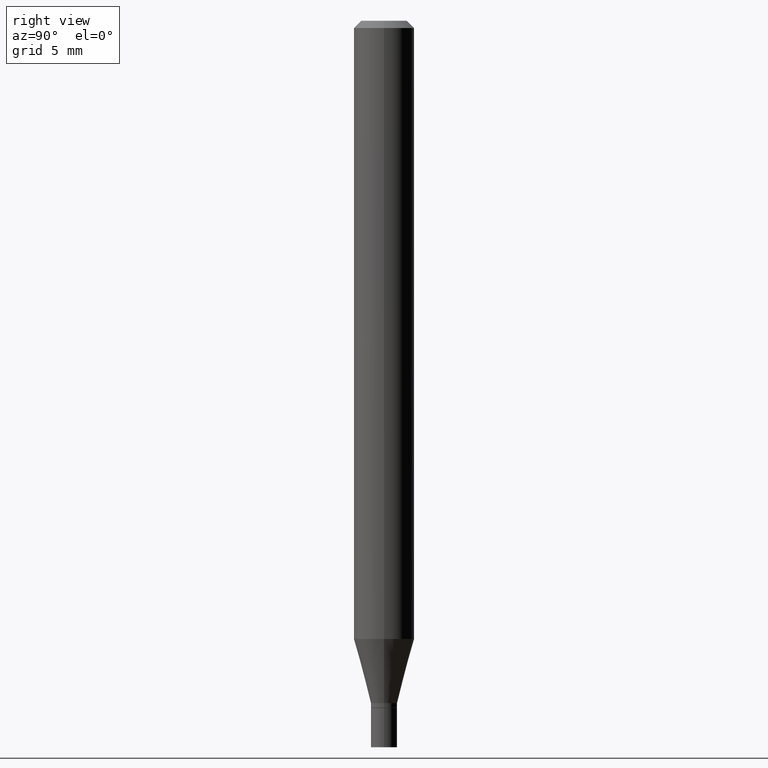
[diagram: clean part render]
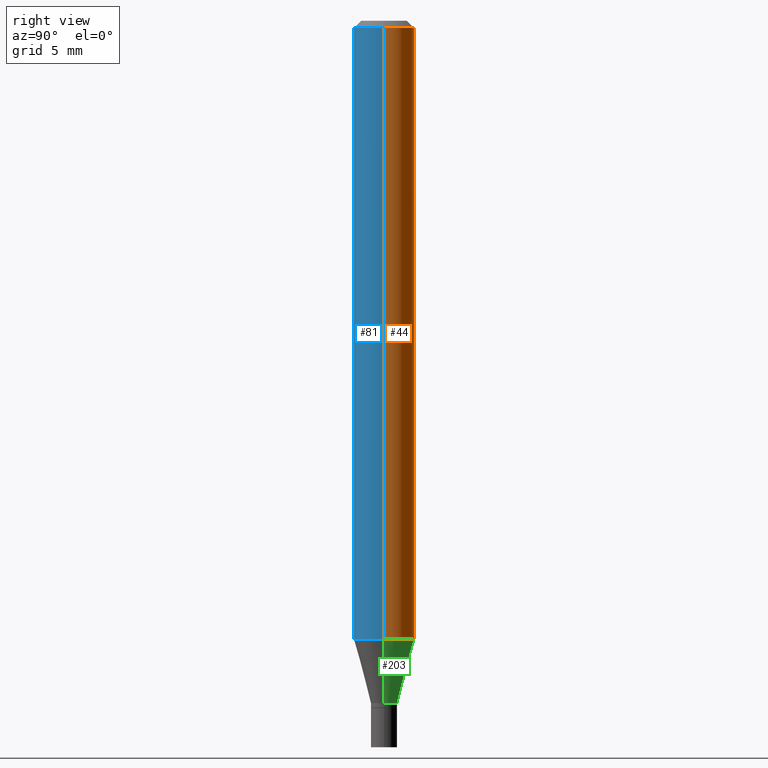
[diagram: same view with three faces highlighted in distinct colors, each labeled with its STEP entity id]
A machine part, right view with three faces highlighted in distinct colors.
Their STEP definitions:

[orange] entity #44 — the highlighted cylindrical surface (edge-blend (fillet) strip) has radius 1.5875 mm, axis along (-0, 0, 1).
#26 = CARTESIAN_POINT ( 'NONE',  ( 0.06250000000000000000, -4.888073874380388472E-16, -0.01499999999999999944 ) ) ;
#43 = CYLINDRICAL_SURFACE ( 'NONE', #340, 0.06250000000000000000 ) ;
#44 = ADVANCED_FACE ( 'NONE', ( #120 ), #43, .T. ) ;
#72 = ORIENTED_EDGE ( 'NONE', *, *, #215, .T. ) ;
#84 = DIRECTION ( 'NONE',  ( 1.000000000000000000, -6.982962677686266711E-15, 4.876176775795935793E-29 ) ) ;
#89 = EDGE_LOOP ( 'NONE', ( #72, #275, #267, #99 ) ) ;
#90 = DIRECTION ( 'NONE',  ( -2.445468806185136597E-29, 3.491481338843145583E-15, 1.000000000000000000 ) ) ;
#95 = AXIS2_PLACEMENT_3D ( 'NONE', #346, #216, #100 ) ;
#99 = ORIENTED_EDGE ( 'NONE', *, *, #299, .F. ) ;
#100 = DIRECTION ( 'NONE',  ( 1.000000000000000000, -6.982962677686266711E-15, 0.000000000000000000 ) ) ;
#119 = CARTESIAN_POINT ( 'NONE',  ( 0.06250000000000000000, -4.893353679651821108E-15, -1.276512196331304860 ) ) ;
#120 = FACE_OUTER_BOUND ( 'NONE', #89, .T. ) ;
#134 = DIRECTION ( 'NONE',  ( -2.445468806185136877E-29, 3.491481338843145188E-15, 1.000000000000000000 ) ) ;
#161 = DIRECTION ( 'NONE',  ( 1.000000000000000000, -6.982962677686262766E-15, 0.000000000000000000 ) ) ;
#167 = CARTESIAN_POINT ( 'NONE',  ( -0.06250000000000000000, -1.810556156339475445E-15, -0.01499999999999999944 ) ) ;
#182 = VECTOR ( 'NONE', #320, 39.37007874015748143 ) ;
#192 = AXIS2_PLACEMENT_3D ( 'NONE', #443, #90, #161 ) ;
#204 = VERTEX_POINT ( 'NONE', #310 ) ;
#205 = LINE ( 'NONE', #343, #260 ) ;
#210 = VERTEX_POINT ( 'NONE', #119 ) ;
#215 = EDGE_CURVE ( 'NONE', #210, #204, #291, .T. ) ;
#216 = DIRECTION ( 'NONE',  ( -2.445468806185136597E-29, 3.491481338843145583E-15, 1.000000000000000000 ) ) ;
#260 = VECTOR ( 'NONE', #134, 39.37007874015748143 ) ;
#267 = ORIENTED_EDGE ( 'NONE', *, *, #342, .F. ) ;
#275 = ORIENTED_EDGE ( 'NONE', *, *, #430, .T. ) ;
#291 = CIRCLE ( 'NONE', #192, 0.06250000000000000000 ) ;
#293 = CARTESIAN_POINT ( 'NONE',  ( 0.000000000000000000, 0.000000000000000000, 0.000000000000000000 ) ) ;
#299 = EDGE_CURVE ( 'NONE', #210, #417, #313, .T. ) ;
#310 = CARTESIAN_POINT ( 'NONE',  ( -0.06250000000000000000, -4.012829302446366033E-15, -1.276512196331304860 ) ) ;
#313 = LINE ( 'NONE', #385, #182 ) ;
#320 = DIRECTION ( 'NONE',  ( -2.445468806185136877E-29, 3.491481338843145188E-15, 1.000000000000000000 ) ) ;
#340 = AXIS2_PLACEMENT_3D ( 'NONE', #293, #438, #84 ) ;
#342 = EDGE_CURVE ( 'NONE', #417, #378, #406, .T. ) ;
#343 = CARTESIAN_POINT ( 'NONE',  ( -0.06250000000000000000, 4.440892098500626162E-16, -3.074334431409316114E-30 ) ) ;
#346 = CARTESIAN_POINT ( 'NONE',  ( 3.668203209277705088E-31, -5.237222008264718399E-17, -0.01499999999999999944 ) ) ;
#378 = VERTEX_POINT ( 'NONE', #167 ) ;
#385 = CARTESIAN_POINT ( 'NONE',  ( 0.06250000000000000000, -4.364351673553916694E-16, 3.047610484872459871E-30 ) ) ;
#406 = CIRCLE ( 'NONE', #95, 0.06250000000000000000 ) ;
#417 = VERTEX_POINT ( 'NONE', #26 ) ;
#430 = EDGE_CURVE ( 'NONE', #204, #378, #205, .T. ) ;
#438 = DIRECTION ( 'NONE',  ( -2.445468806185136597E-29, 3.491481338843145583E-15, 1.000000000000000000 ) ) ;
#443 = CARTESIAN_POINT ( 'NONE',  ( 3.121670756843082346E-29, -4.456918512296428650E-15, -1.276512196331304860 ) ) ;

[blue] entity #81 — the highlighted cylindrical surface (edge-blend (fillet) strip) has radius 1.5875 mm, axis along (-0, 0, 1).
#8 = CARTESIAN_POINT ( 'NONE',  ( 3.668203209277705088E-31, -5.237222008264718399E-17, -0.01499999999999999944 ) ) ;
#14 = AXIS2_PLACEMENT_3D ( 'NONE', #8, #42, #54 ) ;
#18 = ORIENTED_EDGE ( 'NONE', *, *, #69, .F. ) ;
#26 = CARTESIAN_POINT ( 'NONE',  ( 0.06250000000000000000, -4.888073874380388472E-16, -0.01499999999999999944 ) ) ;
#42 = DIRECTION ( 'NONE',  ( -2.445468806185136597E-29, 3.491481338843145583E-15, 1.000000000000000000 ) ) ;
#54 = DIRECTION ( 'NONE',  ( 1.000000000000000000, -6.982962677686266711E-15, 0.000000000000000000 ) ) ;
#69 = EDGE_CURVE ( 'NONE', #378, #417, #94, .T. ) ;
#81 = ADVANCED_FACE ( 'NONE', ( #199 ), #233, .T. ) ;
#94 = CIRCLE ( 'NONE', #14, 0.06250000000000000000 ) ;
#119 = CARTESIAN_POINT ( 'NONE',  ( 0.06250000000000000000, -4.893353679651821108E-15, -1.276512196331304860 ) ) ;
#129 = CARTESIAN_POINT ( 'NONE',  ( 3.121670756843082346E-29, -4.456918512296428650E-15, -1.276512196331304860 ) ) ;
#134 = DIRECTION ( 'NONE',  ( -2.445468806185136877E-29, 3.491481338843145188E-15, 1.000000000000000000 ) ) ;
#148 = AXIS2_PLACEMENT_3D ( 'NONE', #129, #209, #276 ) ;
#158 = DIRECTION ( 'NONE',  ( -2.445468806185136597E-29, 3.491481338843145583E-15, 1.000000000000000000 ) ) ;
#167 = CARTESIAN_POINT ( 'NONE',  ( -0.06250000000000000000, -1.810556156339475445E-15, -0.01499999999999999944 ) ) ;
#182 = VECTOR ( 'NONE', #320, 39.37007874015748143 ) ;
#199 = FACE_OUTER_BOUND ( 'NONE', #309, .T. ) ;
#204 = VERTEX_POINT ( 'NONE', #310 ) ;
#205 = LINE ( 'NONE', #343, #260 ) ;
#209 = DIRECTION ( 'NONE',  ( -2.445468806185136597E-29, 3.491481338843145583E-15, 1.000000000000000000 ) ) ;
#210 = VERTEX_POINT ( 'NONE', #119 ) ;
#231 = CIRCLE ( 'NONE', #148, 0.06250000000000000000 ) ;
#233 = CYLINDRICAL_SURFACE ( 'NONE', #424, 0.06250000000000000000 ) ;
#260 = VECTOR ( 'NONE', #134, 39.37007874015748143 ) ;
#273 = ORIENTED_EDGE ( 'NONE', *, *, #292, .T. ) ;
#276 = DIRECTION ( 'NONE',  ( 1.000000000000000000, -6.982962677686262766E-15, 0.000000000000000000 ) ) ;
#292 = EDGE_CURVE ( 'NONE', #204, #210, #231, .T. ) ;
#299 = EDGE_CURVE ( 'NONE', #210, #417, #313, .T. ) ;
#306 = DIRECTION ( 'NONE',  ( 1.000000000000000000, -6.982962677686266711E-15, 4.876176775795935793E-29 ) ) ;
#309 = EDGE_LOOP ( 'NONE', ( #315, #273, #347, #18 ) ) ;
#310 = CARTESIAN_POINT ( 'NONE',  ( -0.06250000000000000000, -4.012829302446366033E-15, -1.276512196331304860 ) ) ;
#313 = LINE ( 'NONE', #385, #182 ) ;
#315 = ORIENTED_EDGE ( 'NONE', *, *, #430, .F. ) ;
#320 = DIRECTION ( 'NONE',  ( -2.445468806185136877E-29, 3.491481338843145188E-15, 1.000000000000000000 ) ) ;
#343 = CARTESIAN_POINT ( 'NONE',  ( -0.06250000000000000000, 4.440892098500626162E-16, -3.074334431409316114E-30 ) ) ;
#347 = ORIENTED_EDGE ( 'NONE', *, *, #299, .T. ) ;
#375 = CARTESIAN_POINT ( 'NONE',  ( 0.000000000000000000, 0.000000000000000000, 0.000000000000000000 ) ) ;
#378 = VERTEX_POINT ( 'NONE', #167 ) ;
#385 = CARTESIAN_POINT ( 'NONE',  ( 0.06250000000000000000, -4.364351673553916694E-16, 3.047610484872459871E-30 ) ) ;
#417 = VERTEX_POINT ( 'NONE', #26 ) ;
#424 = AXIS2_PLACEMENT_3D ( 'NONE', #375, #158, #306 ) ;
#430 = EDGE_CURVE ( 'NONE', #204, #378, #205, .T. ) ;

[green] entity #203 — the highlighted conical surface has half-angle 15 deg.
#5 = DIRECTION ( 'NONE',  ( -0.2588190451025209060, 5.211531920934547097E-15, 0.9659258262890682012 ) ) ;
#29 = DIRECTION ( 'NONE',  ( -2.445468806185136597E-29, 3.491481338843145583E-15, 1.000000000000000000 ) ) ;
#62 = CARTESIAN_POINT ( 'NONE',  ( 3.445665547914857626E-29, -4.919497206429992694E-15, -1.409000000000000252 ) ) ;
#77 = CONICAL_SURFACE ( 'NONE', #108, 0.02699999999999991990, 0.2617993877991495744 ) ;
#90 = DIRECTION ( 'NONE',  ( -2.445468806185136597E-29, 3.491481338843145583E-15, 1.000000000000000000 ) ) ;
#108 = AXIS2_PLACEMENT_3D ( 'NONE', #341, #130, #164 ) ;
#119 = CARTESIAN_POINT ( 'NONE',  ( 0.06250000000000000000, -4.893353679651821108E-15, -1.276512196331304860 ) ) ;
#130 = DIRECTION ( 'NONE',  ( -2.445468806185136597E-29, 3.491481338843145583E-15, 1.000000000000000000 ) ) ;
#139 = CARTESIAN_POINT ( 'NONE',  ( -0.02699999999999991990, -4.370239985110565754E-15, -1.409000000000000252 ) ) ;
#142 = CIRCLE ( 'NONE', #372, 0.02699999999999991990 ) ;
#161 = DIRECTION ( 'NONE',  ( 1.000000000000000000, -6.982962677686262766E-15, 0.000000000000000000 ) ) ;
#164 = DIRECTION ( 'NONE',  ( 1.000000000000000000, -6.982962677686281699E-15, 0.000000000000000000 ) ) ;
#170 = EDGE_CURVE ( 'NONE', #393, #210, #286, .T. ) ;
#171 = CARTESIAN_POINT ( 'NONE',  ( 0.02699999999999991990, -5.108037198727522179E-15, -1.409000000000000252 ) ) ;
#185 = DIRECTION ( 'NONE',  ( 0.2588190451025209060, 1.565188264969625123E-15, 0.9659258262890682012 ) ) ;
#192 = AXIS2_PLACEMENT_3D ( 'NONE', #443, #90, #161 ) ;
#201 = FACE_OUTER_BOUND ( 'NONE', #272, .T. ) ;
#203 = ADVANCED_FACE ( 'NONE', ( #201 ), #77, .T. ) ;
#204 = VERTEX_POINT ( 'NONE', #310 ) ;
#210 = VERTEX_POINT ( 'NONE', #119 ) ;
#215 = EDGE_CURVE ( 'NONE', #210, #204, #291, .T. ) ;
#237 = ORIENTED_EDGE ( 'NONE', *, *, #433, .T. ) ;
#272 = EDGE_LOOP ( 'NONE', ( #458, #237, #304, #323 ) ) ;
#286 = LINE ( 'NONE', #314, #413 ) ;
#291 = CIRCLE ( 'NONE', #192, 0.06250000000000000000 ) ;
#304 = ORIENTED_EDGE ( 'NONE', *, *, #215, .F. ) ;
#310 = CARTESIAN_POINT ( 'NONE',  ( -0.06250000000000000000, -4.012829302446366033E-15, -1.276512196331304860 ) ) ;
#312 = VERTEX_POINT ( 'NONE', #139 ) ;
#314 = CARTESIAN_POINT ( 'NONE',  ( 0.02699999999999991990, -5.108037198727522179E-15, -1.409000000000000252 ) ) ;
#321 = EDGE_CURVE ( 'NONE', #393, #312, #142, .T. ) ;
#323 = ORIENTED_EDGE ( 'NONE', *, *, #170, .F. ) ;
#324 = CARTESIAN_POINT ( 'NONE',  ( -0.02699999999999991990, -4.727650667774767051E-15, -1.409000000000000252 ) ) ;
#325 = VECTOR ( 'NONE', #5, 39.37007874015748143 ) ;
#326 = LINE ( 'NONE', #324, #325 ) ;
#341 = CARTESIAN_POINT ( 'NONE',  ( 3.445665547914857626E-29, -4.919497206429992694E-15, -1.409000000000000252 ) ) ;
#372 = AXIS2_PLACEMENT_3D ( 'NONE', #62, #29, #419 ) ;
#393 = VERTEX_POINT ( 'NONE', #171 ) ;
#413 = VECTOR ( 'NONE', #185, 39.37007874015748143 ) ;
#419 = DIRECTION ( 'NONE',  ( 1.000000000000000000, -6.982962677686281699E-15, 0.000000000000000000 ) ) ;
#433 = EDGE_CURVE ( 'NONE', #312, #204, #326, .T. ) ;
#443 = CARTESIAN_POINT ( 'NONE',  ( 3.121670756843082346E-29, -4.456918512296428650E-15, -1.276512196331304860 ) ) ;
#458 = ORIENTED_EDGE ( 'NONE', *, *, #321, .T. ) ;